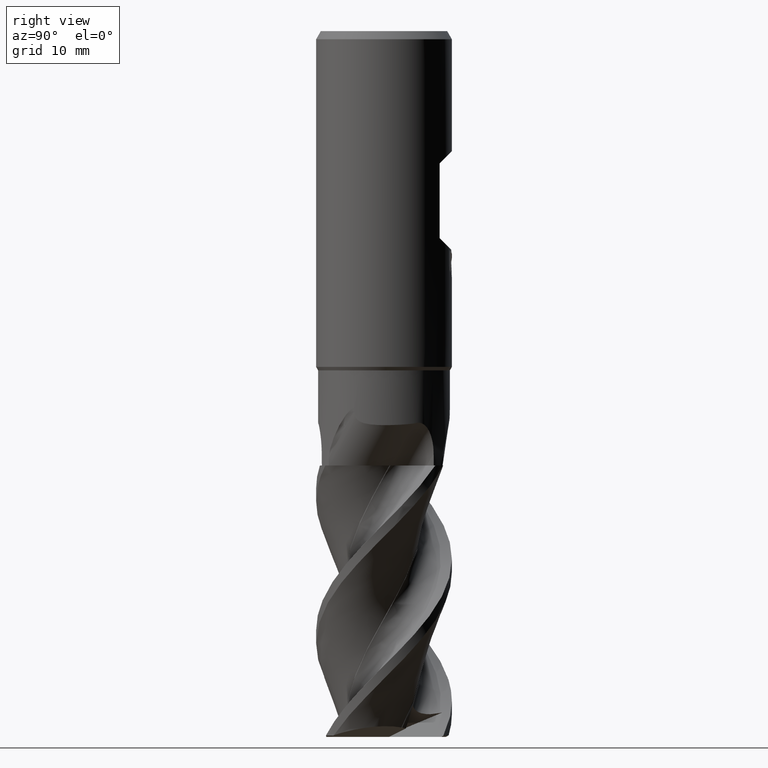
[diagram: clean part render]
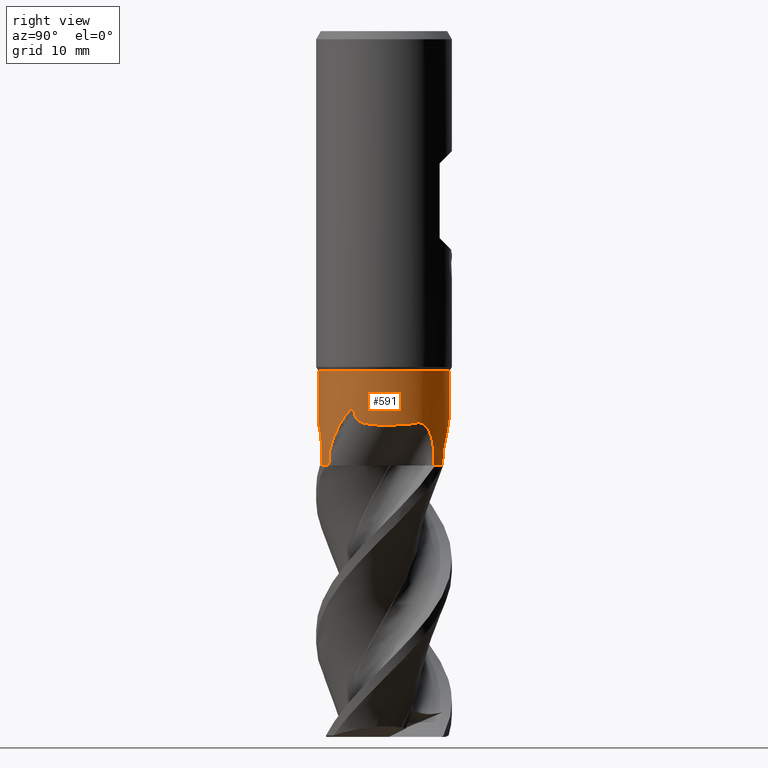
[diagram: same view with one face highlighted and labeled with its STEP entity id]
A machine part, right view. The second image highlights one B-rep face of the part: STEP entity #591.
In plain terms, the highlighted cylindrical surface (partial cylindrical patch) has radius 9.6999 mm, axis along (-0, -0, 1).
Its self-contained STEP definition (entity closure, byte-faithful):
#493=EDGE_CURVE('',#717,#691,#1351,.T.);
#501=EDGE_CURVE('',#621,#687,#1359,.T.);
#515=VERTEX_POINT('',#1375);
#523=VERTEX_POINT('',#1383);
#573=EDGE_CURVE('',#1175,#823,#1440,.T.);
#587=EDGE_CURVE('',#977,#807,#1455,.T.);
#591=ADVANCED_FACE('',(#1459),#1460,.T.);
#621=VERTEX_POINT('',#1493);
#687=VERTEX_POINT('',#1563);
#691=VERTEX_POINT('',#1567);
#701=VERTEX_POINT('',#1578);
#717=VERTEX_POINT('',#1594);
#755=EDGE_CURVE('',#911,#515,#1638,.T.);
#807=VERTEX_POINT('',#1696);
#809=EDGE_CURVE('',#687,#515,#1698,.T.);
#811=EDGE_CURVE('',#717,#523,#1700,.T.);
#823=VERTEX_POINT('',#1712);
#853=EDGE_CURVE('',#823,#523,#1744,.T.);
#863=VERTEX_POINT('',#1755);
#875=EDGE_CURVE('',#1175,#961,#1768,.T.);
#881=EDGE_CURVE('',#691,#863,#1774,.T.);
#911=VERTEX_POINT('',#1806);
#933=EDGE_CURVE('',#701,#961,#1830,.T.);
#943=EDGE_CURVE('',#911,#977,#1842,.T.);
#961=VERTEX_POINT('',#1860);
#977=VERTEX_POINT('',#1880);
#1115=EDGE_CURVE('',#863,#621,#2026,.T.);
#1175=VERTEX_POINT('',#2092);
#1199=EDGE_CURVE('',#701,#807,#2123,.T.);
#1351=B_SPLINE_CURVE_WITH_KNOTS('',3,(#2917,#2918,#2919,#2920),.UNSPECIFIED.,.F.,.F.,(4,4),(0.0,1.18782372876831),.UNSPECIFIED.);
#1359=B_SPLINE_CURVE_WITH_KNOTS('',3,(#2930,#2931,#2932,#2933,#2934,#2935,#2936,#2937,#2938,#2939,#2940,#2941,#2942,#2943),.UNSPECIFIED.,.F.,.F.,(4,2,2,2,2,2,4),(0.0,0.906610693327754,1.69787368500462,2.58240423178083,3.84677902672307,5.24305679338511,6.70900611858803),.UNSPECIFIED.);
#1375=CARTESIAN_POINT('',(6.3403104401958,7.3409463643623,-64.0));
#1383=CARTESIAN_POINT('',(3.18729081925867,-9.16134309127048,-64.0));
#1440=B_SPLINE_CURVE_WITH_KNOTS('',3,(#3960,#3961,#3962,#3963,#3964,#3965,#3966,#3967,#3968,#3969,#3970,#3971,#3972,#3973),.UNSPECIFIED.,.F.,.F.,(4,2,2,2,2,2,4),(0.0,0.906610693327728,1.69787368500441,2.58240423178068,3.84677902672493,5.24305679338808,6.70900611859274),.UNSPECIFIED.);
#1455=B_SPLINE_CURVE_WITH_KNOTS('',3,(#4119,#4120,#4121,#4122,#4123,#4124,#4125,#4126,#4127,#4128,#4129,#4130,#4131,#4132,#4133,#4134,#4135,#4136,#4137,#4138,#4139,#4140,#4141,#4142,#4143,#4144,#4145,#4146,#4147,#4148,#4149,#4150,#4151,#4152,#4153,#4154,#4155,#4156,#4157,#4158,#4159,#4160,#4161,#4162),.UNSPECIFIED.,.F.,.F.,(4,2,2,2,2,2,2,2,2,2,2,2,2,2,2,2,2,2,2,2,2,4),(0.0,0.0791393492842758,0.237897357287869,0.721646402703942,2.80392620337909,4.09189676067276,4.21910707984049,4.27459705876011,4.31350486808074,4.35324135432173,4.41089289479059,4.56031215327712,4.7677279490213,5.29125113774839,6.6327397041917,6.97536061578139,7.12998536180526,7.22134082783454,7.29709428337175,7.38040069479053,7.51243220720285,7.8672889515893),.UNSPECIFIED.);
#1459=FACE_OUTER_BOUND('',#4168,.T.);
#1460=CYLINDRICAL_SURFACE('',#4169,9.69995);
#1493=CARTESIAN_POINT('',(8.66131100941541,4.3670037326157,-57.8301332566388));
#1563=CARTESIAN_POINT('',(6.36678915410699,7.31799329527197,-62.2181531833889));
#1567=CARTESIAN_POINT('',(5.37487486643817,-8.07463622540553,-62.7800802003411));
#1578=CARTESIAN_POINT('',(0.0,9.69995,-50.0));
#1594=CARTESIAN_POINT('',(5.26446742406315,-8.14704932742388,-64.0));
#1638=CIRCLE('',#4688,9.69995);
#1696=CARTESIAN_POINT('',(-1.258446010048E-014,9.69994999999999,-55.7185931537012));
#1698=B_SPLINE_CURVE_WITH_KNOTS('',3,(#5423,#5424,#5425,#5426),.UNSPECIFIED.,.F.,.F.,(4,4),(0.0,1.78216712053083),.UNSPECIFIED.);
#1700=CIRCLE('',#5429,9.69995);
#1712=CARTESIAN_POINT('',(3.15417352137627,-9.17279779563186,-62.2181531833989));
#1744=B_SPLINE_CURVE_WITH_KNOTS('',3,(#5630,#5631,#5632,#5633),.UNSPECIFIED.,.F.,.F.,(4,4),(0.0,1.78216712051192),.UNSPECIFIED.);
#1755=CARTESIAN_POINT('',(8.6325115920021,-4.42366065792228,-56.0683003644378));
#1768=LINE('',#6188,#6189);
#1774=B_SPLINE_CURVE_WITH_KNOTS('',3,(#6212,#6213,#6214,#6215,#6216,#6217,#6218,#6219,#6220,#6221,#6222,#6223,#6224,#6225,#6226,#6227,#6228,#6229,#6230,#6231,#6232,#6233,#6234,#6235,#6236,#6237,#6238,#6239,#6240,#6241,#6242,#6243,#6244,#6245,#6246,#6247,#6248,#6249,#6250,#6251,#6252,#6253,#6254,#6255),.UNSPECIFIED.,.F.,.F.,(4,2,2,2,2,2,2,2,2,2,2,2,2,2,2,2,2,2,2,2,2,4),(0.0,0.0791393492836027,0.237897357282042,0.721646402681859,2.80392620322575,4.09189676043391,4.21910707959153,4.27459705851606,4.31350486786001,4.35324135411141,4.41089289456319,4.56031215298664,4.76772794865312,5.29125113719619,6.63273970313723,6.97536061460639,7.12998536057075,7.22134082656265,7.29709428207059,7.38040069346072,7.51243220582228,7.86728895008612),.UNSPECIFIED.);
#1806=CARTESIAN_POINT('',(4.42331797139851,8.63268719034826,-64.0000000000021));
#1830=CIRCLE('',#6823,9.69995);
#1842=B_SPLINE_CURVE_WITH_KNOTS('',3,(#6853,#6854,#6855,#6856),.UNSPECIFIED.,.F.,.F.,(4,4),(0.0,1.18782372874884),.UNSPECIFIED.);
#1860=CARTESIAN_POINT('',(1.18786204017594E-015,-9.69995,-50.0));
#1880=CARTESIAN_POINT('',(4.30540266430065,8.69209628920049,-62.7800802003697));
#2026=B_SPLINE_CURVE_WITH_KNOTS('',3,(#8546,#8547,#8548,#8549,#8550,#8551,#8552,#8553,#8554,#8555,#8556,#8557,#8558,#8559,#8560,#8561),.UNSPECIFIED.,.F.,.F.,(4,2,2,2,2,2,2,4),(0.0,0.890766471432722,1.62147666927422,2.43527566496696,3.72297861537028,5.89792123439144,7.48554979823451,9.08605367577894),.UNSPECIFIED.);
#2092=CARTESIAN_POINT('',(2.64620070794137E-014,-9.69995000000002,-57.7100668631812));
#2123=LINE('',#9390,#9391);
#2917=CARTESIAN_POINT('',(5.26446742406429,-8.14704932742313,-63.9999999999919));
#2918=CARTESIAN_POINT('',(5.32043216430262,-8.11088598287468,-63.6097057158827));
#2919=CARTESIAN_POINT('',(5.36710511246148,-8.07980815565664,-63.1802040878003));
#2920=CARTESIAN_POINT('',(5.37487486582447,-8.07463622581404,-62.7800802013569));
#2930=CARTESIAN_POINT('',(8.66131100942396,4.36700373259878,-57.8301332569069));
#2931=CARTESIAN_POINT('',(8.53235651956355,4.62276603809101,-57.7337829741053));
#2932=CARTESIAN_POINT('',(8.38739611067206,4.88174348520694,-57.6855049839055));
#2933=CARTESIAN_POINT('',(8.08851126717878,5.36042747007234,-57.7187268516691));
#2934=CARTESIAN_POINT('',(7.94589597658045,5.56856668909561,-57.7837351966245));
#2935=CARTESIAN_POINT('',(7.64515092059256,5.97596322489536,-58.0179354430374));
#2936=CARTESIAN_POINT('',(7.49439360749197,6.16178207743608,-58.1929329987055));
#2937=CARTESIAN_POINT('',(7.16052654012272,6.55032377026918,-58.6933987469605));
#2938=CARTESIAN_POINT('',(6.99076370048955,6.72723521045015,-59.0519576343198));
#2939=CARTESIAN_POINT('',(6.70263314867926,7.01494111661943,-59.8434898210216));
#2940=CARTESIAN_POINT('',(6.58589529286086,7.12227284539335,-60.2946447371929));
#2941=CARTESIAN_POINT('',(6.42102330604572,7.27134441500932,-61.2297170409005));
#2942=CARTESIAN_POINT('',(6.37450428230613,7.31128099142584,-61.7248687689414));
#2943=CARTESIAN_POINT('',(6.36678915418252,7.31799329520627,-62.2181531833894));
#3960=CARTESIAN_POINT('',(-0.548719333859738,-9.68441723053837,-57.8301332569168));
#3961=CARTESIAN_POINT('',(-0.26274543504279,-9.7006205191333,-57.7337829741153));
#3962=CARTESIAN_POINT('',(0.0340158176125914,-9.70456984604825,-57.6855049839155));
#3963=CARTESIAN_POINT('',(0.598010730637359,-9.68506997120962,-57.7187268516791));
#3964=CARTESIAN_POINT('',(0.849572227134489,-9.66563111609506,-57.7837351966345));
#3965=CARTESIAN_POINT('',(1.35276050454511,-9.60887652544679,-58.0179354430476));
#3966=CARTESIAN_POINT('',(1.58906300789792,-9.57122628876562,-58.1929329987161));
#3967=CARTESIAN_POINT('',(2.09248351800494,-9.47635977335347,-58.6933987469706));
#3968=CARTESIAN_POINT('',(2.33057473923829,-9.41779656170307,-59.0519576343297));
#3969=CARTESIAN_POINT('',(2.72380063870499,-9.31212113731353,-59.8434898210319));
#3970=CARTESIAN_POINT('',(2.87512157036449,-9.26468905297848,-60.2946447372032));
#3971=CARTESIAN_POINT('',(3.08665733004145,-9.19644150883215,-61.2297170409107));
#3972=CARTESIAN_POINT('',(3.14450293162811,-9.1761231407227,-61.7248687689517));
#3973=CARTESIAN_POINT('',(3.15417352128167,-9.17279779566442,-62.2181531833995));
#4119=CARTESIAN_POINT('',(4.30540266430053,8.69209628920055,-62.7800802003694));
#4120=CARTESIAN_POINT('',(4.3176981701876,8.68600603179384,-62.7575497264324));
#4121=CARTESIAN_POINT('',(4.32580695542746,8.68196178089548,-62.7318235032616));
#4122=CARTESIAN_POINT('',(4.34198528782001,8.67388836409905,-62.6546345392624));
#4123=CARTESIAN_POINT('',(4.34324439854096,8.67324999234595,-62.5964154160141));
#4124=CARTESIAN_POINT('',(4.33344392903682,8.67815428523624,-62.3827603856737));
#4125=CARTESIAN_POINT('',(4.28840814282513,8.70058652459342,-62.1957473708672));
#4126=CARTESIAN_POINT('',(4.09649978022277,8.79418788427695,-61.5057934272271));
#4127=CARTESIAN_POINT('',(3.75057106130347,8.96169991493984,-60.7246751192236));
#4128=CARTESIAN_POINT('',(2.92938111884183,9.25303398898354,-59.2852429090827));
#4129=CARTESIAN_POINT('',(2.57825060675301,9.35863950274533,-58.7350829664773));
#4130=CARTESIAN_POINT('',(2.17441980853911,9.45316446513449,-58.1576858315122));
#4131=CARTESIAN_POINT('',(2.13787070155894,9.46149871962447,-58.1059063233685));
#4132=CARTESIAN_POINT('',(2.08505090250667,9.47321818433197,-58.0317704058532));
#4133=CARTESIAN_POINT('',(2.06896169663108,9.47674522265936,-58.0092796397196));
#4134=CARTESIAN_POINT('',(2.04151487193143,9.4826884905345,-57.971068962592));
#4135=CARTESIAN_POINT('',(2.03017917370381,9.48512189542961,-57.955332882594));
#4136=CARTESIAN_POINT('',(2.00722120040578,9.49000704458841,-57.9235546972478));
#4137=CARTESIAN_POINT('',(1.99559713843997,9.49245825117704,-57.9075120697418));
#4138=CARTESIAN_POINT('',(1.96705095817146,9.49842295143466,-57.8682314940723));
#4139=CARTESIAN_POINT('',(1.95010070157309,9.50191760614993,-57.8450073075596));
#4140=CARTESIAN_POINT('',(1.88904220717667,9.51433502751541,-57.761711850211));
#4141=CARTESIAN_POINT('',(1.8446163591255,9.52305069347155,-57.7017833885888));
#4142=CARTESIAN_POINT('',(1.73774551481745,9.54323147901782,-57.5592955522894));
#4143=CARTESIAN_POINT('',(1.67485888481165,9.55447678475929,-57.4767927016923));
#4144=CARTESIAN_POINT('',(1.45102289357145,9.59218401105199,-57.1882092678243));
#4145=CARTESIAN_POINT('',(1.28380796040969,9.61614978818408,-56.9816509016334));
#4146=CARTESIAN_POINT('',(0.676297730731295,9.68633829109699,-56.2744137556103));
#4147=CARTESIAN_POINT('',(0.299214976736503,9.69946124212239,-55.9138011331916));
#4148=CARTESIAN_POINT('',(-0.0559727416407469,9.7000576628123,-55.6819242118009));
#4149=CARTESIAN_POINT('',(-0.142423915280496,9.69925403280735,-55.6329400208267));
#4150=CARTESIAN_POINT('',(-0.26192256833528,9.69648431898069,-55.5954321905259));
#4151=CARTESIAN_POINT('',(-0.302720899642359,9.69530333148224,-55.5870758042613));
#4152=CARTESIAN_POINT('',(-0.364635269532459,9.6931212997151,-55.5897907753423));
#4153=CARTESIAN_POINT('',(-0.387240197581127,9.69223977306414,-55.5943209720105));
#4154=CARTESIAN_POINT('',(-0.425435950109444,9.69063127919615,-55.6120072115775));
#4155=CARTESIAN_POINT('',(-0.440556865132962,9.68994880195488,-55.6230916251608));
#4156=CARTESIAN_POINT('',(-0.467753176717645,9.68867587961848,-55.6525246293972));
#4157=CARTESIAN_POINT('',(-0.47857932414743,9.68814015183925,-55.6706258907419));
#4158=CARTESIAN_POINT('',(-0.499831774469412,9.68707223191364,-55.7205663067995));
#4159=CARTESIAN_POINT('',(-0.50657986419847,9.68671343208151,-55.7548658313181));
#4160=CARTESIAN_POINT('',(-0.518382247621824,9.68609230005374,-55.876987994043));
#4161=CARTESIAN_POINT('',(-0.503598503941277,9.68688577101151,-55.9808661597598));
#4162=CARTESIAN_POINT('',(-0.485253288520637,9.6878046660985,-56.0683003644613));
#4168=EDGE_LOOP('',(#9978,#9979,#9980,#9981,#9982,#9983,#9984,#9985,#9986,#9987,#9988,#9989,#9990,#9991));
#4169=AXIS2_PLACEMENT_3D('',#9992,#9993,#9994);
#4688=AXIS2_PLACEMENT_3D('',#10210,#10211,#10212);
#5423=CARTESIAN_POINT('',(6.36678915410704,7.31799329527192,-62.2181531833889));
#5424=CARTESIAN_POINT('',(6.35749992626494,7.32607509484303,-62.8120812746552));
#5425=CARTESIAN_POINT('',(6.34866764908486,7.33372831696892,-63.4060465351135));
#5426=CARTESIAN_POINT('',(6.34031044019591,7.34094636436221,-63.9999999999919));
#5429=AXIS2_PLACEMENT_3D('',#10295,#10296,#10297);
#5630=CARTESIAN_POINT('',(3.15417352137618,-9.17279779563192,-62.218153183399));
#5631=CARTESIAN_POINT('',(3.16581717903396,-9.16879398812472,-62.812081274659));
#5632=CARTESIAN_POINT('',(3.1768612024059,-9.1649716227764,-63.4060465351217));
#5633=CARTESIAN_POINT('',(3.18729081925875,-9.16134309127045,-64.0000000000044));
#6188=CARTESIAN_POINT('',(1.18762121129517E-015,-9.69995,-57.0));
#6189=VECTOR('',#10344,1.0);
#6212=CARTESIAN_POINT('',(5.37487486643829,-8.07463622540544,-62.7800802003407));
#6213=CARTESIAN_POINT('',(5.36345279586506,-8.08223931715261,-62.7575497264038));
#6214=CARTESIAN_POINT('',(5.35589597922787,-8.08723960571499,-62.7318235032336));
#6215=CARTESIAN_POINT('',(5.3408150289904,-8.09721374415969,-62.6546345392337));
#6216=CARTESIAN_POINT('',(5.33963262747479,-8.09798498015358,-62.5964154159848));
#6217=CARTESIAN_POINT('',(5.34878010445737,-8.09194967103917,-62.3827603856471));
#6218=CARTESIAN_POINT('',(5.39072488670945,-8.06416365577963,-62.1957473708424));
#6219=CARTESIAN_POINT('',(5.56774022332627,-7.94476681840843,-61.5057934271991));
#6220=CARTESIAN_POINT('',(5.88577425677953,-7.7289397752572,-60.7246751191955));
#6221=CARTESIAN_POINT('',(6.54867193712075,-7.16343546077431,-59.285242909054));
#6222=CARTESIAN_POINT('',(6.81569425086219,-6.91215027414266,-58.7350829664495));
#6223=CARTESIAN_POINT('',(7.09947066868883,-6.60968502525463,-58.1576858314869));
#6224=CARTESIAN_POINT('',(7.12496289828892,-6.58219969736914,-58.1059063233431));
#6225=CARTESIAN_POINT('',(7.16152215197244,-6.54231614191873,-58.0317704058239));
#6226=CARTESIAN_POINT('',(7.17262125970086,-6.53014600006851,-58.0092796396924));
#6227=CARTESIAN_POINT('',(7.19149169301436,-6.50934798656044,-57.9710689625601));
#6228=CARTESIAN_POINT('',(7.19926693258335,-6.50074768637505,-57.9553328825655));
#6229=CARTESIAN_POINT('',(7.21497658249917,-6.4833080728656,-57.9235546972314));
#6230=CARTESIAN_POINT('',(7.22291142065997,-6.47446694319996,-57.9075120697209));
#6231=CARTESIAN_POINT('',(7.24235009274216,-6.45272757603649,-57.8682314940537));
#6232=CARTESIAN_POINT('',(7.25385168080391,-6.43979555057739,-57.8450073075376));
#6233=CARTESIAN_POINT('',(7.29513473035633,-6.3931260539935,-57.7617118501845));
#6234=CARTESIAN_POINT('',(7.32489564251087,-6.35900997397458,-57.7017833885623));
#6235=CARTESIAN_POINT('',(7.39580813761829,-6.27654750065073,-57.559295552259));
#6236=CARTESIAN_POINT('',(7.43699017306585,-6.2277087343788,-57.4767927016634));
#6237=CARTESIAN_POINT('',(7.58156358456196,-6.05271469282947,-57.188209267795));
#6238=CARTESIAN_POINT('',(7.68592602296153,-5.91988520138415,-56.9816509016026));
#6239=CARTESIAN_POINT('',(8.05046616437373,-5.42886016088387,-56.2744137555864));
#6240=CARTESIAN_POINT('',(8.25037235033009,-5.10885839211129,-55.9138011331707));
#6241=CARTESIAN_POINT('',(8.42848272498774,-4.80155501522932,-55.6819242117788));
#6242=CARTESIAN_POINT('',(8.47101234780822,-4.72628428766762,-55.6329400208044));
#6243=CARTESIAN_POINT('',(8.52836303180039,-4.62141056149114,-55.5954321905035));
#6244=CARTESIAN_POINT('',(8.54773943227924,-4.58548767639708,-55.5870758042383));
#6245=CARTESIAN_POINT('',(8.57680692228216,-4.53077724332928,-55.5897907753191));
#6246=CARTESIAN_POINT('',(8.58734596183284,-4.51076003806264,-55.5943209719871));
#6247=CARTESIAN_POINT('',(8.60505084154583,-4.47687729912182,-55.6120072115544));
#6248=CARTESIAN_POINT('',(8.61202025642919,-4.46344096396218,-55.6230916251384));
#6249=CARTESIAN_POINT('',(8.6245160291407,-4.43925180607332,-55.6525246293737));
#6250=CARTESIAN_POINT('',(8.62946514898928,-4.42960822348443,-55.6706258907175));
#6251=CARTESIAN_POINT('',(8.63916652836574,-4.41066910164965,-55.7205663067761));
#6252=CARTESIAN_POINT('',(8.64222984346069,-4.40464568460128,-55.7548658312955));
#6253=CARTESIAN_POINT('',(8.64759311905725,-4.3941139547175,-55.8769879940191));
#6254=CARTESIAN_POINT('',(8.64088841322365,-4.40731378778666,-55.9808661597358));
#6255=CARTESIAN_POINT('',(8.63251159200202,-4.42366065792244,-56.0683003644379));
#6823=AXIS2_PLACEMENT_3D('',#10400,#10401,#10402);
#6853=CARTESIAN_POINT('',(4.42331797139819,8.63268719034842,-64.0));
#6854=CARTESIAN_POINT('',(4.36401722621581,8.66307240483595,-63.609705715897));
#6855=CARTESIAN_POINT('',(4.31376656427271,8.68795345000125,-63.1802040878224));
#6856=CARTESIAN_POINT('',(4.30540266496117,8.69209628887332,-62.7800802013854));
#8546=CARTESIAN_POINT('',(8.63251159233937,-4.42366065726415,-56.0683003634914));
#8547=CARTESIAN_POINT('',(8.64631742876577,-4.39671938571859,-56.3636752679286));
#8548=CARTESIAN_POINT('',(8.67849589315595,-4.33419064937462,-56.6121474377626));
#8549=CARTESIAN_POINT('',(8.76721660745318,-4.1513050904848,-56.9963058153051));
#8550=CARTESIAN_POINT('',(8.81838743060228,-4.04315438807446,-57.1444759633753));
#8551=CARTESIAN_POINT('',(8.94474630833852,-3.75604330070792,-57.4142668331238));
#8552=CARTESIAN_POINT('',(9.01774043702691,-3.57902144386871,-57.5226242511178));
#8553=CARTESIAN_POINT('',(9.1983413518904,-3.09511155237542,-57.7436025495014));
#8554=CARTESIAN_POINT('',(9.31473305506777,-2.73804351321046,-57.8377034129657));
#8555=CARTESIAN_POINT('',(9.58331600106702,-1.6553111976137,-58.0193579704167));
#8556=CARTESIAN_POINT('',(9.71764028217568,-0.794716771353262,-58.0660697466128));
#8557=CARTESIAN_POINT('',(9.68373029414361,0.913216442646512,-58.0661742975413));
#8558=CARTESIAN_POINT('',(9.58889035143251,1.63159600319575,-58.041712452179));
#8559=CARTESIAN_POINT('',(9.24086605476655,3.03706846867929,-57.9606326168776));
#8560=CARTESIAN_POINT('',(8.98746524646505,3.72012466928287,-57.9034341442361));
#8561=CARTESIAN_POINT('',(8.66131100941541,4.36700373261573,-57.8301332566387));
#9390=CARTESIAN_POINT('',(-1.1881028690567E-015,9.69995,-57.0));
#9391=VECTOR('',#10740,1.0);
#9978=ORIENTED_EDGE('',*,*,#1199,.F.);
#9979=ORIENTED_EDGE('',*,*,#933,.T.);
#9980=ORIENTED_EDGE('',*,*,#875,.F.);
#9981=ORIENTED_EDGE('',*,*,#573,.T.);
#9982=ORIENTED_EDGE('',*,*,#853,.T.);
#9983=ORIENTED_EDGE('',*,*,#811,.F.);
#9984=ORIENTED_EDGE('',*,*,#493,.T.);
#9985=ORIENTED_EDGE('',*,*,#881,.T.);
#9986=ORIENTED_EDGE('',*,*,#1115,.T.);
#9987=ORIENTED_EDGE('',*,*,#501,.T.);
#9988=ORIENTED_EDGE('',*,*,#809,.T.);
#9989=ORIENTED_EDGE('',*,*,#755,.F.);
#9990=ORIENTED_EDGE('',*,*,#943,.T.);
#9991=ORIENTED_EDGE('',*,*,#587,.T.);
#9992=CARTESIAN_POINT('',(0.0,0.0,-57.0));
#9993=DIRECTION('',(-0.0,-0.0,1.0));
#9994=DIRECTION('',(0.0,1.0,0.0));
#10210=CARTESIAN_POINT('',(0.0,0.0,-64.0));
#10211=DIRECTION('',(0.0,0.0,-1.0));
#10212=DIRECTION('',(0.0,1.0,0.0));
#10295=CARTESIAN_POINT('',(0.0,0.0,-64.0));
#10296=DIRECTION('',(0.0,0.0,-1.0));
#10297=DIRECTION('',(0.0,1.0,0.0));
#10344=DIRECTION('',(-0.0,-0.0,1.0));
#10400=CARTESIAN_POINT('',(0.0,0.0,-50.0));
#10401=DIRECTION('',(0.0,0.0,-1.0));
#10402=DIRECTION('',(0.0,1.0,0.0));
#10740=DIRECTION('',(0.0,0.0,-1.0));